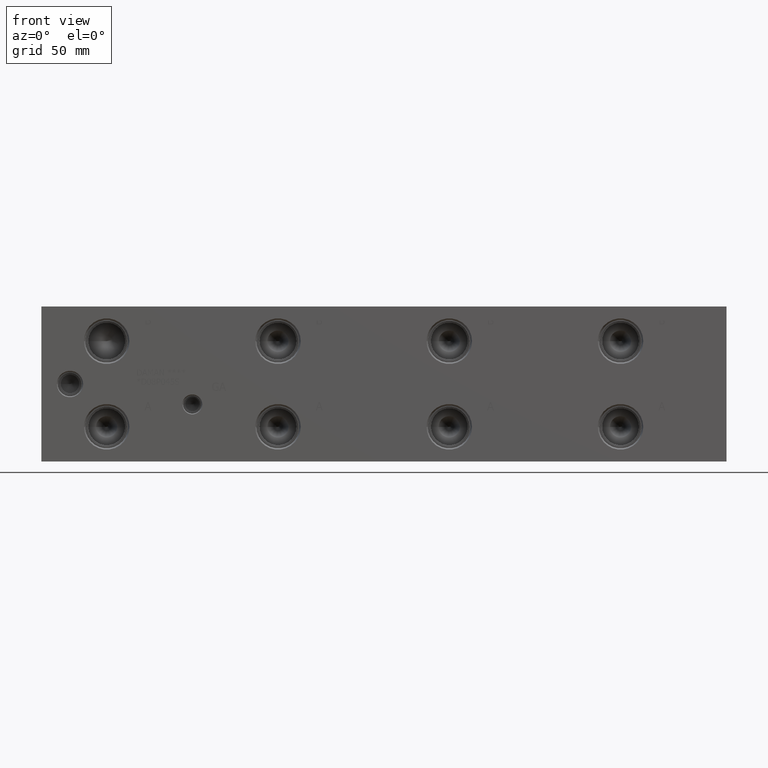
[diagram: clean part render]
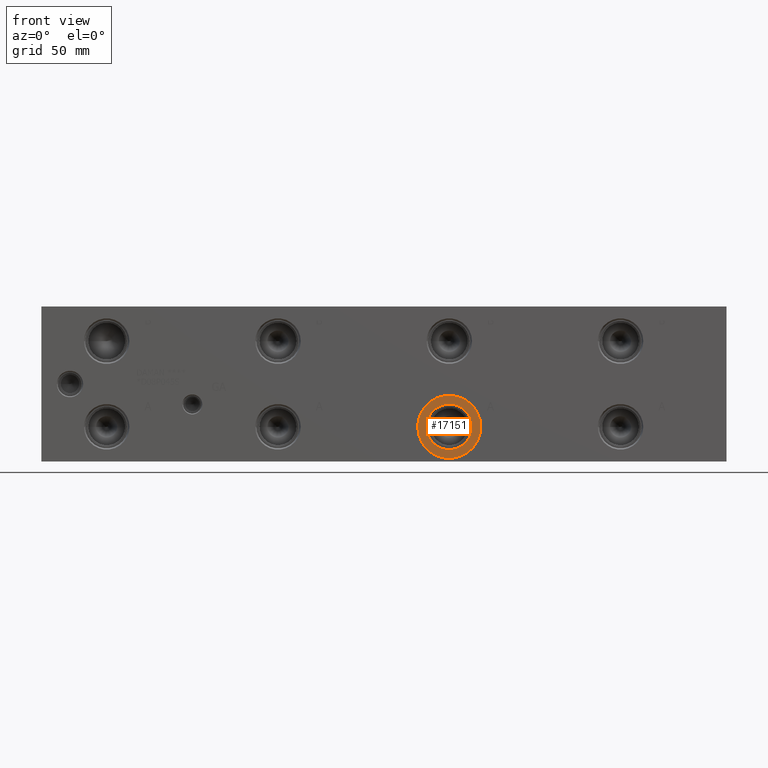
[diagram: same view with one face highlighted and labeled with its STEP entity id]
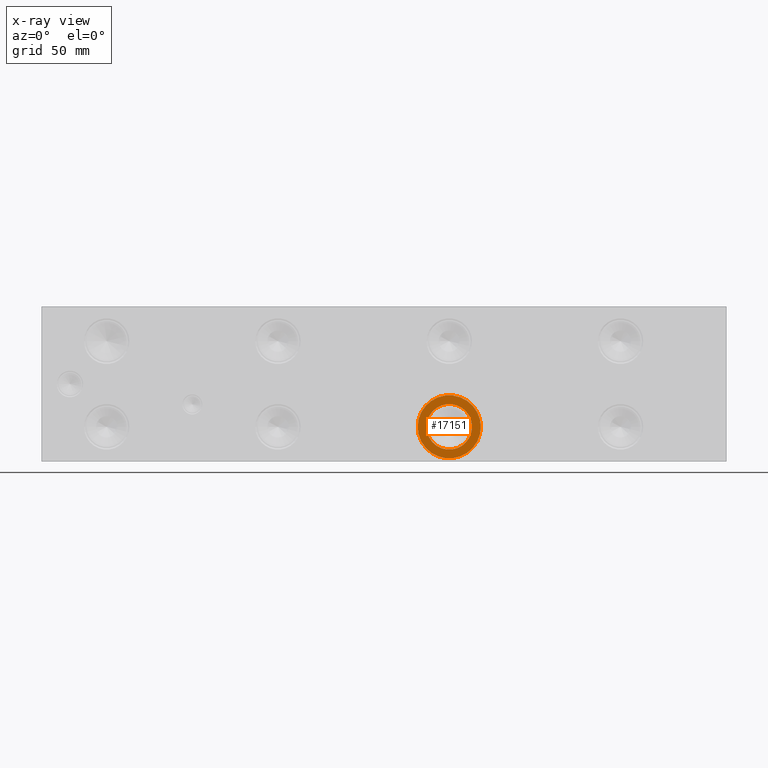
[diagram: x-ray of the same camera — body ghosted, the highlighted face saturated]
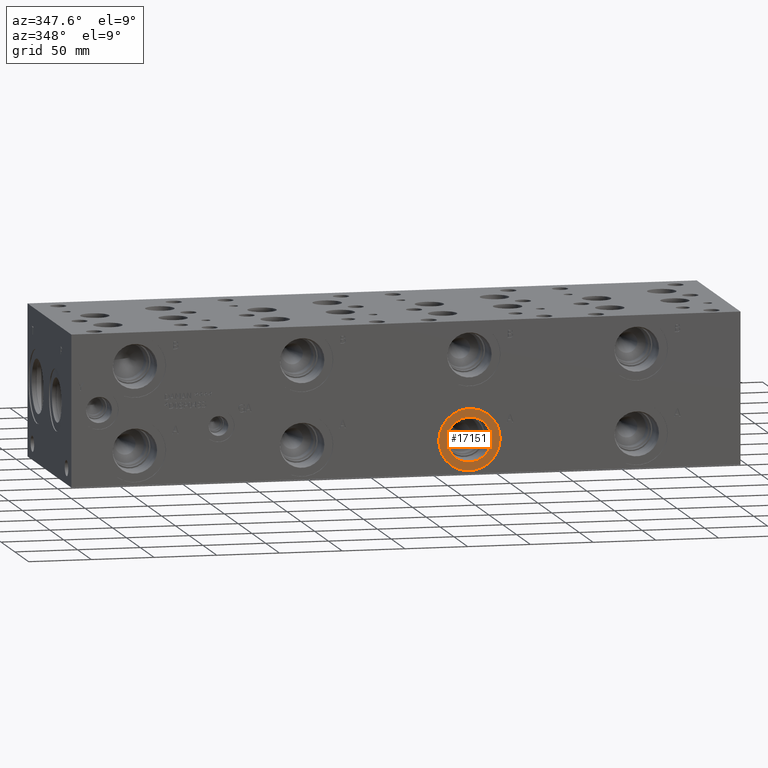
[diagram: same view with one face highlighted and labeled with its STEP entity id]
A machine part, front view. The second image highlights one B-rep face of the part: STEP entity #17151.
The next image is the same camera in x-ray: the body ghosted, the highlighted face saturated — about 0% of this face is hidden behind the body in this view.
A second angle (auxiliary view) of the same face is appended — the face is thin or edge-on in the first view.
In plain terms, the highlighted planar face has unit normal (0, -1, 0).
Its self-contained STEP definition (entity closure, byte-faithful):
#695=CIRCLE('',#18110,24.5618);
#696=CIRCLE('',#18111,24.5618);
#697=CIRCLE('',#18112,17.7546);
#1532=FACE_BOUND('',#3318,.T.);
#2308=FACE_OUTER_BOUND('',#3317,.T.);
#3317=EDGE_LOOP('',(#14279,#14280));
#3318=EDGE_LOOP('',(#14281));
#7802=VERTEX_POINT('',#28971);
#7803=VERTEX_POINT('',#28972);
#7804=VERTEX_POINT('',#28975);
#10085=EDGE_CURVE('',#7802,#7803,#695,.T.);
#10086=EDGE_CURVE('',#7803,#7802,#696,.T.);
#10087=EDGE_CURVE('',#7804,#7804,#697,.T.);
#14279=ORIENTED_EDGE('',*,*,#10085,.T.);
#14280=ORIENTED_EDGE('',*,*,#10086,.T.);
#14281=ORIENTED_EDGE('',*,*,#10087,.F.);
#15880=PLANE('',#18109);
#17151=ADVANCED_FACE('',(#2308,#1532),#15880,.T.);
#18109=AXIS2_PLACEMENT_3D('',#28970,#21417,#21418);
#18110=AXIS2_PLACEMENT_3D('',#28973,#21419,#21420);
#18111=AXIS2_PLACEMENT_3D('',#28974,#21421,#21422);
#18112=AXIS2_PLACEMENT_3D('',#28976,#21423,#21424);
#21417=DIRECTION('center_axis',(0.,-1.,0.));
#21418=DIRECTION('ref_axis',(1.,0.,0.));
#21419=DIRECTION('center_axis',(0.,-1.,0.));
#21420=DIRECTION('ref_axis',(1.,0.,0.));
#21421=DIRECTION('center_axis',(0.,-1.,0.));
#21422=DIRECTION('ref_axis',(1.,0.,0.));
#21423=DIRECTION('center_axis',(0.,-1.,0.));
#21424=DIRECTION('ref_axis',(1.,0.,0.));
#28970=CARTESIAN_POINT('Origin',(317.5,0.7874,26.9748));
#28971=CARTESIAN_POINT('',(342.0618,0.7874,26.9748));
#28972=CARTESIAN_POINT('',(292.9382,0.7874,26.9748));
#28973=CARTESIAN_POINT('Origin',(317.5,0.7874,26.9748));
#28974=CARTESIAN_POINT('Origin',(317.5,0.7874,26.9748));
#28975=CARTESIAN_POINT('',(299.7454,0.7874,26.9748));
#28976=CARTESIAN_POINT('Origin',(317.5,0.7874,26.9748));